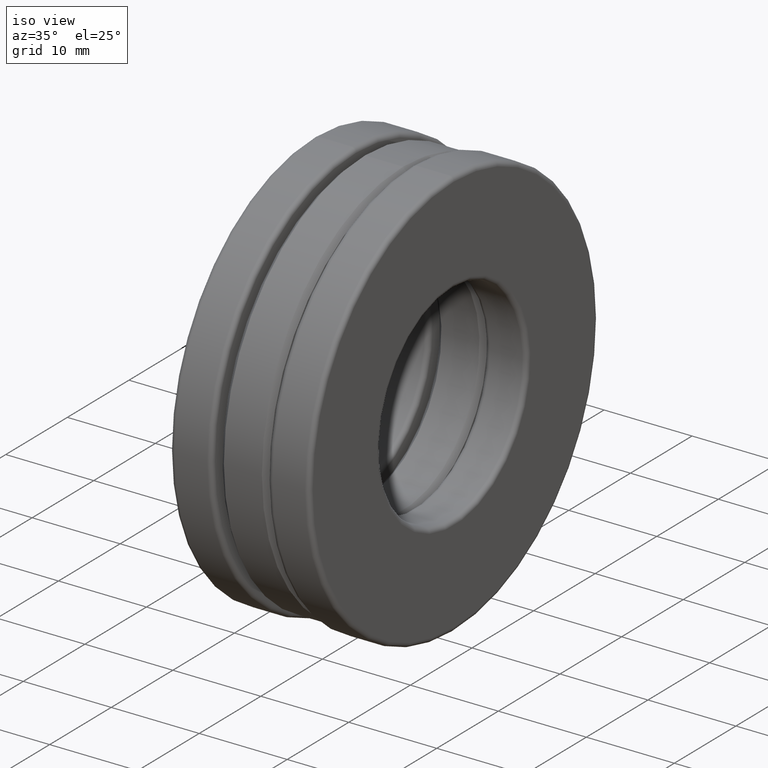
[diagram: clean part render]
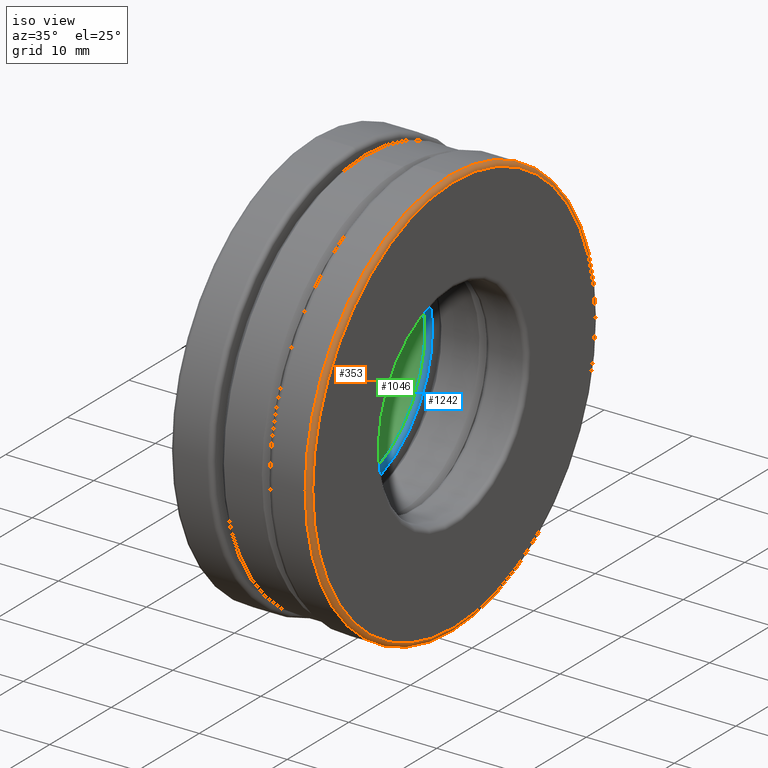
[diagram: same view with three faces highlighted in distinct colors, each labeled with its STEP entity id]
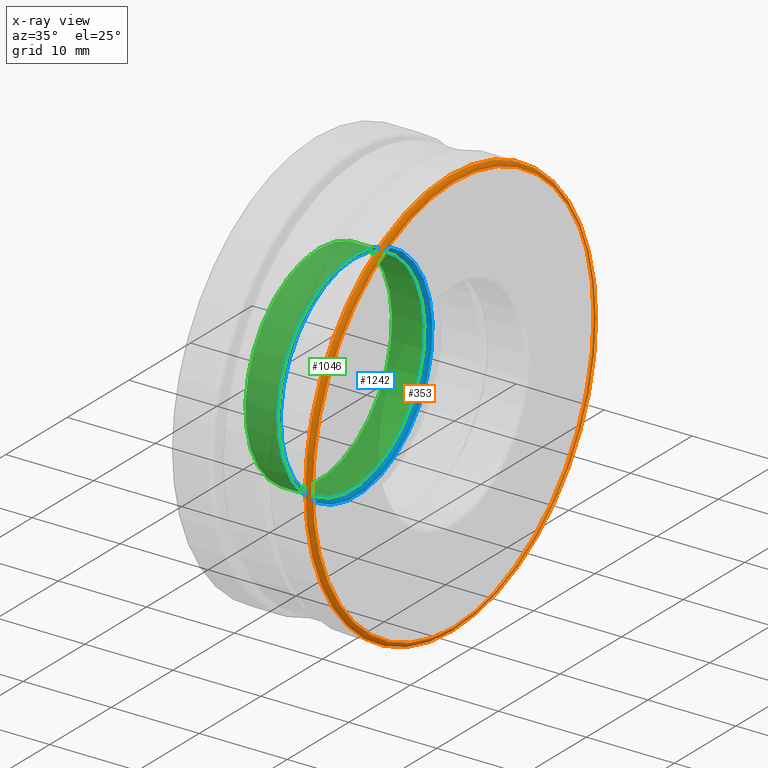
[diagram: x-ray of the same camera — body ghosted, the three highlighted faces saturated]
A machine part, iso view with three faces highlighted in distinct colors.
The next image is the same camera in x-ray (body ghosted, the three faces saturated) — at least one of them is partly hidden behind the body in this view.
Their STEP definitions:

[orange] entity #353 — the highlighted toroidal blend (fillet) surface has major radius 22.9076 mm and minor (blend) radius 0.508 mm.
#41 = ORIENTED_EDGE ( 'NONE', *, *, #372, .T. ) ;
#77 = VERTEX_POINT ( 'NONE', #367 ) ;
#92 = VERTEX_POINT ( 'NONE', #151 ) ;
#109 = DIRECTION ( 'NONE',  ( -1.000000000000000000, -0.0000000000000000000, -0.0000000000000000000 ) ) ;
#151 = CARTESIAN_POINT ( 'NONE',  ( 0.3125000000000000000, 0.0000000000000000000, 0.9018749999999997600 ) ) ;
#199 = CARTESIAN_POINT ( 'NONE',  ( 0.2924999999999999800, 0.0000000000000000000, 0.0000000000000000000 ) ) ;
#353 = ADVANCED_FACE ( 'NONE', ( #418, #1126 ), #502, .T. ) ;
#367 = CARTESIAN_POINT ( 'NONE',  ( 0.2924999999999999300, 0.0000000000000000000, 0.9218750000000000000 ) ) ;
#372 = EDGE_CURVE ( 'NONE', #92, #92, #1453, .T. ) ;
#418 = FACE_OUTER_BOUND ( 'NONE', #1267, .T. ) ;
#460 = DIRECTION ( 'NONE',  ( -1.000000000000000000, -0.0000000000000000000, -0.0000000000000000000 ) ) ;
#502 = TOROIDAL_SURFACE ( 'NONE', #754, 0.9018749999999997600, 0.02000000000000011100 ) ;
#507 = ORIENTED_EDGE ( 'NONE', *, *, #753, .F. ) ;
#563 = DIRECTION ( 'NONE',  ( 0.0000000000000000000, 0.0000000000000000000, 1.000000000000000000 ) ) ;
#659 = CARTESIAN_POINT ( 'NONE',  ( 0.3125000000000000000, 0.0000000000000000000, 0.0000000000000000000 ) ) ;
#697 = DIRECTION ( 'NONE',  ( 0.0000000000000000000, 0.0000000000000000000, 1.000000000000000000 ) ) ;
#753 = EDGE_CURVE ( 'NONE', #77, #77, #1274, .T. ) ;
#754 = AXIS2_PLACEMENT_3D ( 'NONE', #199, #1127, #996 ) ;
#996 = DIRECTION ( 'NONE',  ( 0.0000000000000000000, 0.0000000000000000000, 1.000000000000000000 ) ) ;
#1070 = EDGE_LOOP ( 'NONE', ( #41 ) ) ;
#1126 = FACE_OUTER_BOUND ( 'NONE', #1070, .T. ) ;
#1127 = DIRECTION ( 'NONE',  ( -1.000000000000000000, -0.0000000000000000000, -0.0000000000000000000 ) ) ;
#1259 = AXIS2_PLACEMENT_3D ( 'NONE', #1387, #460, #697 ) ;
#1267 = EDGE_LOOP ( 'NONE', ( #507 ) ) ;
#1274 = CIRCLE ( 'NONE', #1259, 0.9218750000000000000 ) ;
#1351 = AXIS2_PLACEMENT_3D ( 'NONE', #659, #109, #563 ) ;
#1387 = CARTESIAN_POINT ( 'NONE',  ( 0.2924999999999999300, 0.0000000000000000000, 0.0000000000000000000 ) ) ;
#1453 = CIRCLE ( 'NONE', #1351, 0.9018749999999997600 ) ;

[blue] entity #1242 — the highlighted toroidal blend (fillet) surface has major radius 12.4143 mm and minor (blend) radius 0.508 mm.
#265 = FACE_OUTER_BOUND ( 'NONE', #672, .T. ) ;
#286 = DIRECTION ( 'NONE',  ( 0.0000000000000000000, 0.0000000000000000000, 1.000000000000000000 ) ) ;
#325 = CARTESIAN_POINT ( 'NONE',  ( -0.1450000000000000500, 0.0000000000000000000, 0.0000000000000000000 ) ) ;
#408 = DIRECTION ( 'NONE',  ( -1.000000000000000000, -0.0000000000000000000, -0.0000000000000000000 ) ) ;
#556 = DIRECTION ( 'NONE',  ( -1.000000000000000000, -0.0000000000000000000, -0.0000000000000000000 ) ) ;
#571 = VERTEX_POINT ( 'NONE', #1281 ) ;
#617 = AXIS2_PLACEMENT_3D ( 'NONE', #849, #408, #286 ) ;
#633 = CARTESIAN_POINT ( 'NONE',  ( -0.1250000000000000300, 0.0000000000000000000, 0.0000000000000000000 ) ) ;
#645 = EDGE_CURVE ( 'NONE', #1205, #1205, #991, .T. ) ;
#672 = EDGE_LOOP ( 'NONE', ( #1093 ) ) ;
#733 = DIRECTION ( 'NONE',  ( 0.0000000000000000000, 0.0000000000000000000, 1.000000000000000000 ) ) ;
#830 = FACE_OUTER_BOUND ( 'NONE', #1296, .T. ) ;
#849 = CARTESIAN_POINT ( 'NONE',  ( -0.1450000000000000500, 0.0000000000000000000, 0.0000000000000000000 ) ) ;
#951 = CARTESIAN_POINT ( 'NONE',  ( -0.1450000000000000500, 0.0000000000000000000, 0.4687500000000000000 ) ) ;
#991 = CIRCLE ( 'NONE', #617, 0.4687500000000000000 ) ;
#1093 = ORIENTED_EDGE ( 'NONE', *, *, #645, .T. ) ;
#1147 = EDGE_CURVE ( 'NONE', #571, #571, #1201, .T. ) ;
#1201 = CIRCLE ( 'NONE', #1359, 0.4887500000000000700 ) ;
#1205 = VERTEX_POINT ( 'NONE', #951 ) ;
#1239 = DIRECTION ( 'NONE',  ( 0.0000000000000000000, 0.0000000000000000000, 1.000000000000000000 ) ) ;
#1242 = ADVANCED_FACE ( 'NONE', ( #830, #265 ), #1333, .T. ) ;
#1281 = CARTESIAN_POINT ( 'NONE',  ( -0.1250000000000000300, 0.0000000000000000000, 0.4887500000000000700 ) ) ;
#1296 = EDGE_LOOP ( 'NONE', ( #1311 ) ) ;
#1311 = ORIENTED_EDGE ( 'NONE', *, *, #1147, .F. ) ;
#1333 = TOROIDAL_SURFACE ( 'NONE', #1408, 0.4887500000000000700, 0.02000000000000005200 ) ;
#1359 = AXIS2_PLACEMENT_3D ( 'NONE', #633, #1438, #733 ) ;
#1408 = AXIS2_PLACEMENT_3D ( 'NONE', #325, #556, #1239 ) ;
#1438 = DIRECTION ( 'NONE',  ( -1.000000000000000000, -0.0000000000000000000, -0.0000000000000000000 ) ) ;

[green] entity #1046 — the highlighted cylindrical surface (bore or boss wall) has radius 11.9062 mm, axis along (-1, -0, -0).
#20 = CARTESIAN_POINT ( 'NONE',  ( -0.2925000000000000400, 0.0000000000000000000, 0.0000000000000000000 ) ) ;
#140 = CARTESIAN_POINT ( 'NONE',  ( -0.2925000000000000400, 0.0000000000000000000, 0.4687500000000000000 ) ) ;
#237 = CARTESIAN_POINT ( 'NONE',  ( 0.0000000000000000000, 0.0000000000000000000, 0.0000000000000000000 ) ) ;
#286 = DIRECTION ( 'NONE',  ( 0.0000000000000000000, 0.0000000000000000000, 1.000000000000000000 ) ) ;
#329 = CIRCLE ( 'NONE', #630, 0.4687500000000000000 ) ;
#347 = DIRECTION ( 'NONE',  ( -1.000000000000000000, -0.0000000000000000000, -0.0000000000000000000 ) ) ;
#408 = DIRECTION ( 'NONE',  ( -1.000000000000000000, -0.0000000000000000000, -0.0000000000000000000 ) ) ;
#422 = CYLINDRICAL_SURFACE ( 'NONE', #1216, 0.4687500000000000000 ) ;
#459 = DIRECTION ( 'NONE',  ( 0.0000000000000000000, 0.0000000000000000000, 1.000000000000000000 ) ) ;
#513 = EDGE_CURVE ( 'NONE', #1373, #1373, #329, .T. ) ;
#577 = DIRECTION ( 'NONE',  ( 0.0000000000000000000, 0.0000000000000000000, 1.000000000000000000 ) ) ;
#617 = AXIS2_PLACEMENT_3D ( 'NONE', #849, #408, #286 ) ;
#630 = AXIS2_PLACEMENT_3D ( 'NONE', #20, #1161, #577 ) ;
#645 = EDGE_CURVE ( 'NONE', #1205, #1205, #991, .T. ) ;
#710 = ORIENTED_EDGE ( 'NONE', *, *, #513, .T. ) ;
#849 = CARTESIAN_POINT ( 'NONE',  ( -0.1450000000000000500, 0.0000000000000000000, 0.0000000000000000000 ) ) ;
#951 = CARTESIAN_POINT ( 'NONE',  ( -0.1450000000000000500, 0.0000000000000000000, 0.4687500000000000000 ) ) ;
#960 = FACE_OUTER_BOUND ( 'NONE', #1382, .T. ) ;
#991 = CIRCLE ( 'NONE', #617, 0.4687500000000000000 ) ;
#1046 = ADVANCED_FACE ( 'NONE', ( #960, #1458 ), #422, .F. ) ;
#1161 = DIRECTION ( 'NONE',  ( -1.000000000000000000, -0.0000000000000000000, -0.0000000000000000000 ) ) ;
#1169 = EDGE_LOOP ( 'NONE', ( #1307 ) ) ;
#1205 = VERTEX_POINT ( 'NONE', #951 ) ;
#1216 = AXIS2_PLACEMENT_3D ( 'NONE', #237, #347, #459 ) ;
#1307 = ORIENTED_EDGE ( 'NONE', *, *, #645, .F. ) ;
#1373 = VERTEX_POINT ( 'NONE', #140 ) ;
#1382 = EDGE_LOOP ( 'NONE', ( #710 ) ) ;
#1458 = FACE_OUTER_BOUND ( 'NONE', #1169, .T. ) ;